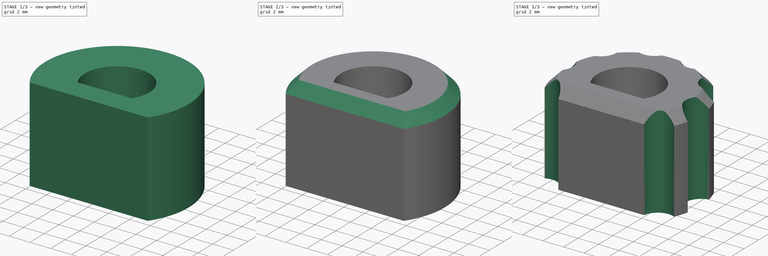
[diagram: build sequence overview — one tinted view per stage of 3, left to right]
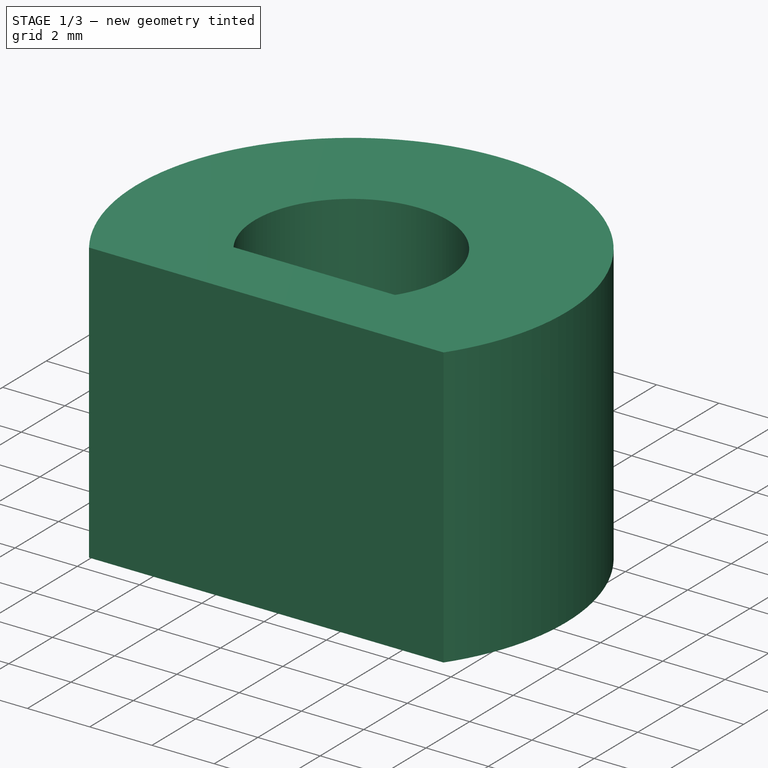
[diagram: stage 1 of 3 — iso view after this stage's code; geometry added in this stage tinted green]
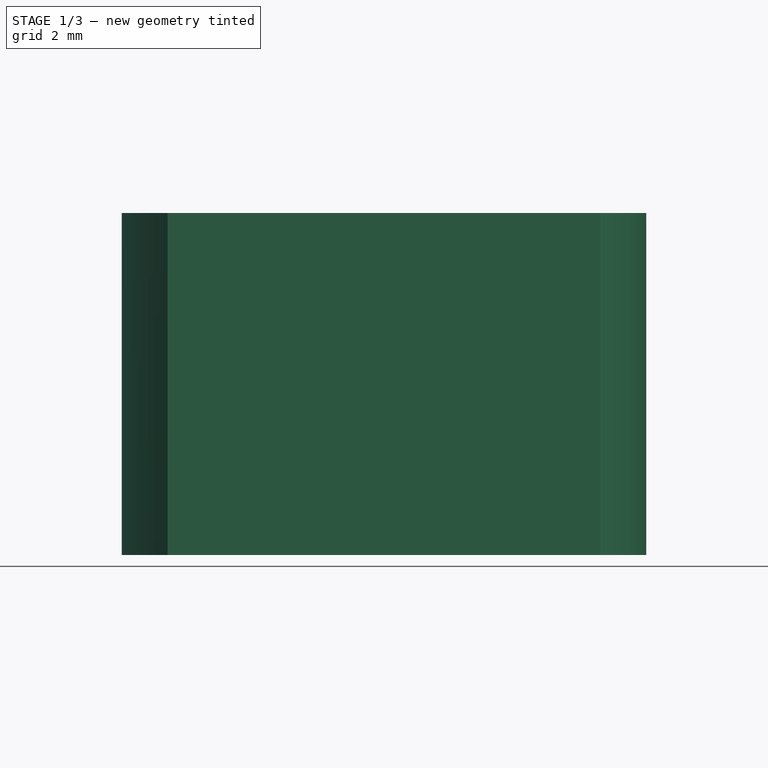
[diagram: stage 1 of 3 — front view after this stage's code; geometry added in this stage tinted green]
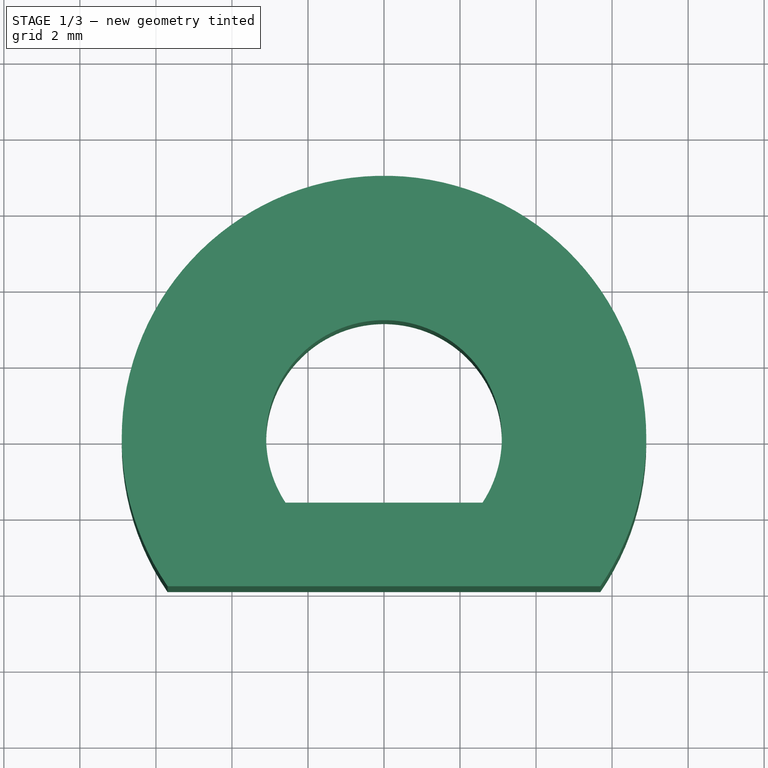
[diagram: stage 1 of 3 — top view after this stage's code; geometry added in this stage tinted green]
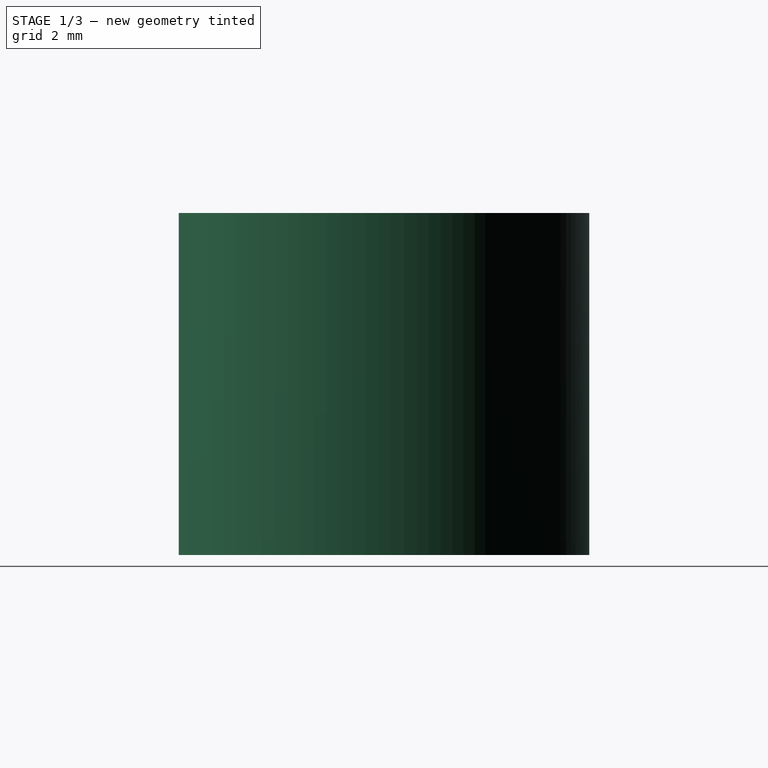
[diagram: stage 1 of 3 — right view after this stage's code; geometry added in this stage tinted green]
FCSTD DOCUMENT  (FreeCAD 0.19R)
Label: KNOB-TEK2
License: All rights reserved
LicenseURL: http://en.wikipedia.org/wiki/All_rights_reserved
objects: Part::Feature×3, Sketcher::SketchObject×3, PartDesign::Pocket×2, PartDesign::Pad×1, PartDesign::Chamfer×1, PartDesign::PolarPattern×1, PartDesign::Body×1
note: 16 computed .brp shape members not serialized (recipe doc carries the construction recipe); baked Part::Feature solids carry a one-line shape summary decoded from their .brp

FEATURE [Part::Feature] Solid  label="alu_potmeter_002_04"
  Placement = pos=(0,0,12) rot=(0,0,1;0rad)
  shape: bbox 38.3 x 38.3 x 17.53 mm, 68 faces (baked)
FEATURE [Part::Feature] Solid001  label="alu_potmeter_007_redesign"
  shape: bbox 37.83 x 37.83 x 21.37 mm, 90 faces (baked)
FEATURE [Part::Feature] Solid002  label="alu_potmeter_007_05"
  shape: bbox 37.88 x 37.93 x 18.33 mm, 68 faces (baked)
FEATURE [Sketcher::SketchObject] Sketch009
  FullyConstrained = true
  MapMode = 5
  Support = -> [XY_Plane003]
  sketch-geometry (4):
    g0: ArcOfCircle CenterX=0 CenterY=0 CenterZ=0 NormalX=0 NormalY=0 NormalZ=1 AngleXU=0 Radius=3.1 StartAngle=5.70275 EndAngle=10.0052
    g1: LineSegment StartX=2.5923 StartY=-1.7 StartZ=0 EndX=-2.5923 EndY=-1.7 EndZ=0
    g2: ArcOfCircle CenterX=0 CenterY=0 CenterZ=0 NormalX=0 NormalY=0 NormalZ=1 AngleXU=0 Radius=6.9 StartAngle=5.68249 EndAngle=10.0255
    g3: LineSegment StartX=-5.6921 StartY=-3.9 StartZ=0 EndX=5.6921 EndY=-3.9 EndZ=0
  constraints (13):
    c: Coincident(g1,g0)
    c: Coincident(g0,g1)
    c: Horizontal(g1)
    c: Diameter(g0) = 6.2
    c: DistanceY(g0,g0) = 1.7
    c: Coincident(g3,g2)
    c: Coincident(g3,g2)
    c: Horizontal(g3)
    c: Radius(g2) = 6.9
    c: Coincident(g0,g-1)
    c: PointOnObject(g2,g-2)
    c: DistanceY(g2,g2) = 3.9
    c: DistanceY(g0,g2) = 0
FEATURE [PartDesign::Pad] Pad
  Direction = (0,0,1)
  Length = 9
  Length2 = 10
  Profile = -> Sketch009
  Type = 0
FEATURE [Sketcher::SketchObject] Sketch010
  FullyConstrained = true
  MapMode = 5
  Support = -> [XY_Plane003]
  sketch-geometry (1):
    g0: Circle CenterX=0 CenterY=0 CenterZ=0 NormalX=0 NormalY=0 NormalZ=1 AngleXU=0 Radius=3.375
  constraints (2):
    c: Coincident(g0,g-1)
    c: Diameter(g0) = 6.75
FEATURE [PartDesign::Pocket] Pocket003
  BaseFeature = -> Pad
  Length = 3
  Length2 = 5
  Profile = -> Sketch010
  Reversed = true
  Type = 0
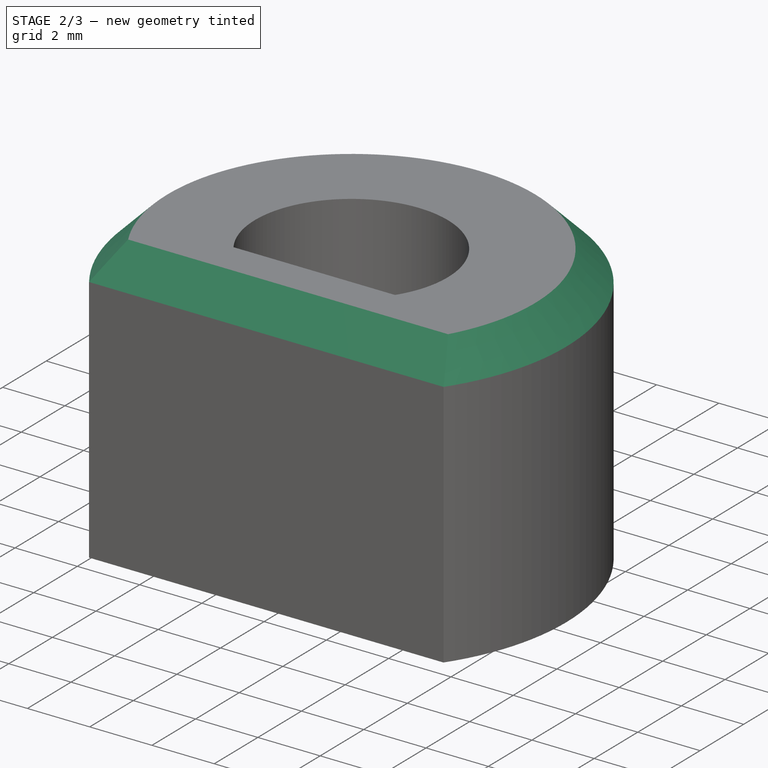
[diagram: stage 2 of 3 — iso view after this stage's code; geometry added in this stage tinted green]
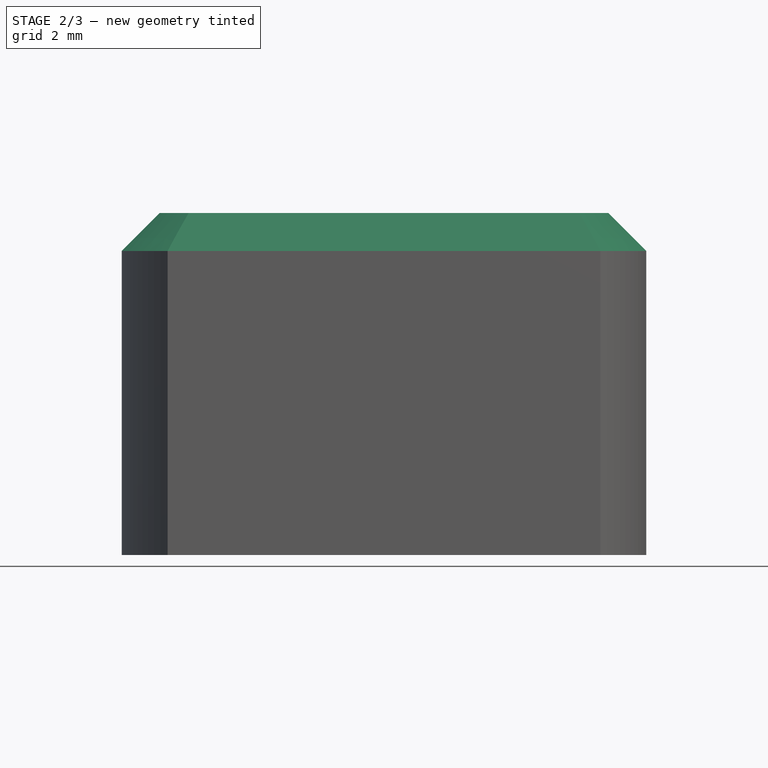
[diagram: stage 2 of 3 — front view after this stage's code; geometry added in this stage tinted green]
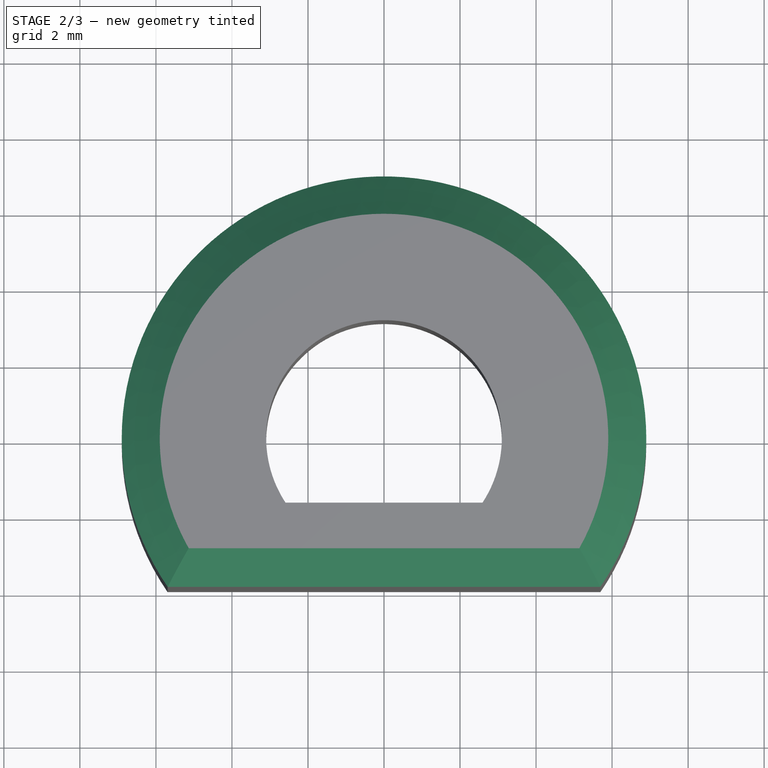
[diagram: stage 2 of 3 — top view after this stage's code; geometry added in this stage tinted green]
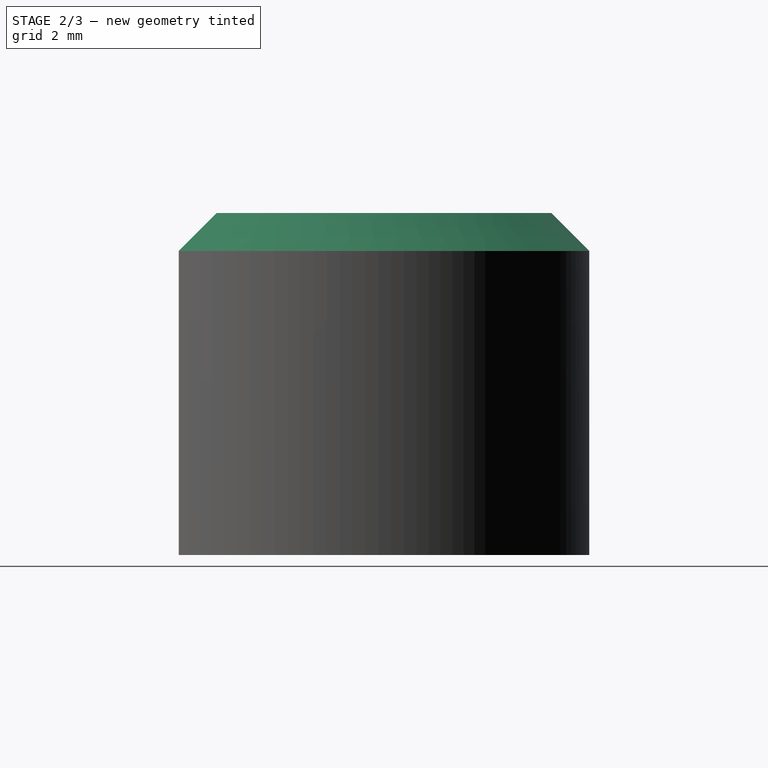
[diagram: stage 2 of 3 — right view after this stage's code; geometry added in this stage tinted green]
FEATURE [PartDesign::Chamfer] Chamfer
  Angle = 45
  Base = -> Pocket003 [Edge4,Edge6]
  BaseFeature = -> Pocket003
  ChamferType = 0
  FlipDirection = false
  Size = 1
  Size2 = 1
  SupportTransform = false
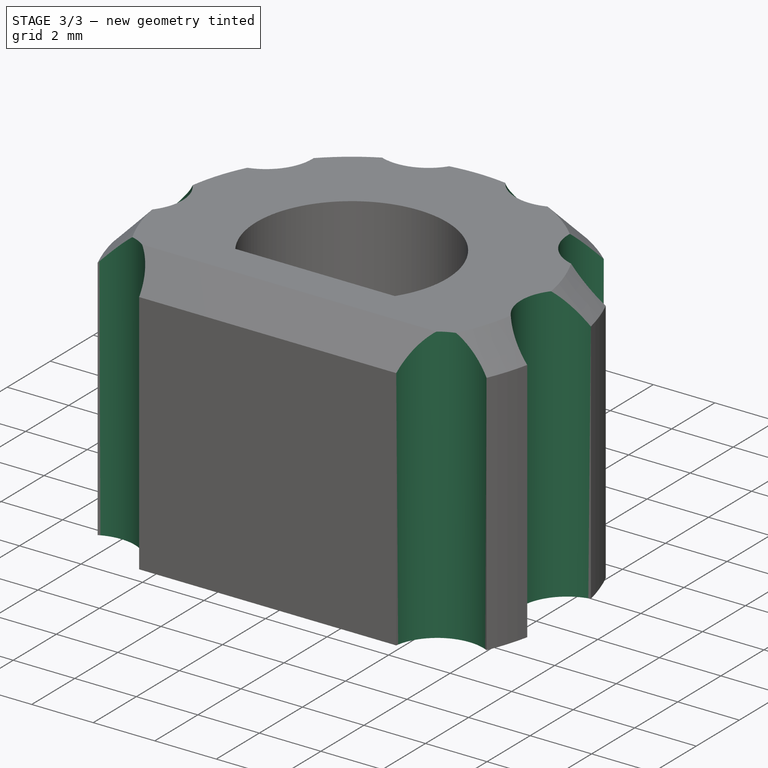
[diagram: stage 3 of 3 — iso view after this stage's code; geometry added in this stage tinted green]
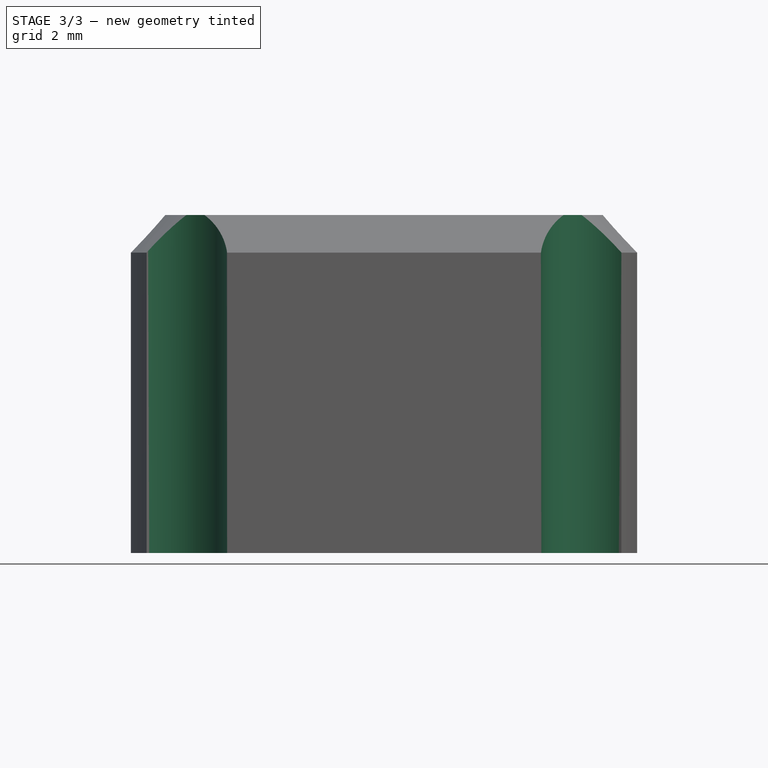
[diagram: stage 3 of 3 — front view after this stage's code; geometry added in this stage tinted green]
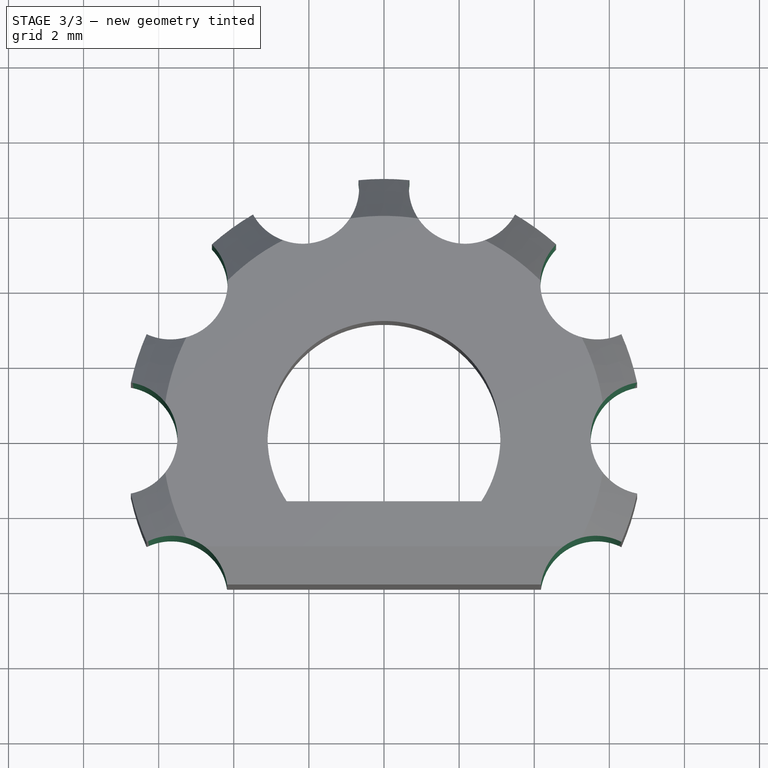
[diagram: stage 3 of 3 — top view after this stage's code; geometry added in this stage tinted green]
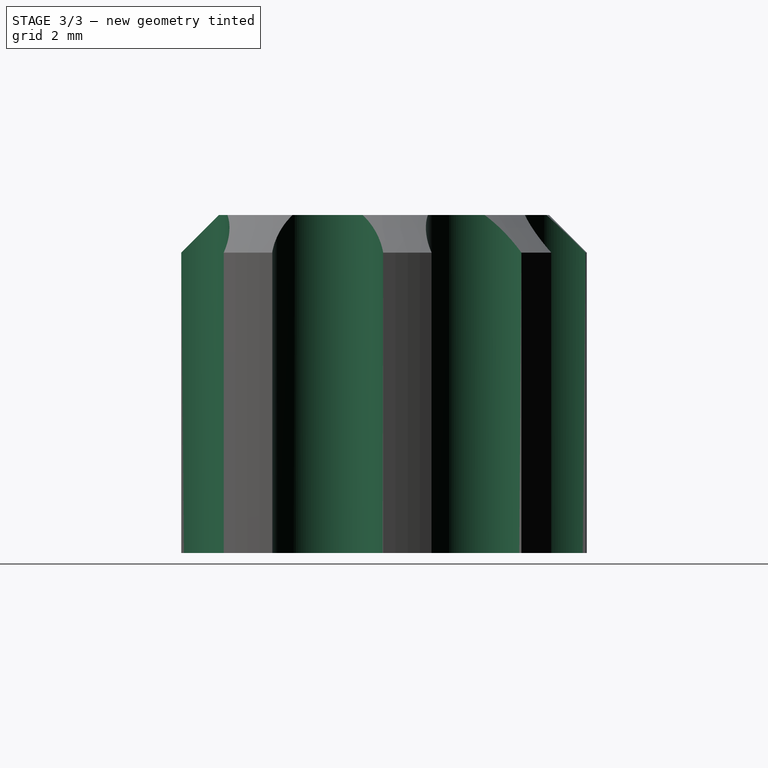
[diagram: stage 3 of 3 — right view after this stage's code; geometry added in this stage tinted green]
FEATURE [Sketcher::SketchObject] Sketch
  FullyConstrained = true
  MapMode = 5
  Support = -> [XY_Plane003]
  sketch-geometry (1):
    g0: Circle CenterX=-7 CenterY=0 CenterZ=0 NormalX=0 NormalY=0 NormalZ=1 AngleXU=0 Radius=1.5
  constraints (3):
    c: PointOnObject(g0,g-1)
    c: DistanceX(g0,g-1) = 7
    c: Diameter(g0) = 3
FEATURE [PartDesign::Pocket] Pocket
  BaseFeature = -> Chamfer
  Length = 5
  Length2 = 100
  Midplane = true
  Profile = -> Sketch
  Type = 1
FEATURE [PartDesign::PolarPattern] PolarPattern
  Angle = 360
  Axis = -> Sketch [N_Axis]
  BaseFeature = -> Pocket
  Occurrences = 10
  Originals = -> [Pocket]
FEATURE [PartDesign::Body] Body003  label="INSERT_TEK2"
  Group = -> [Sketch009,Pad,Sketch010,Pocket003,Chamfer,Sketch,Pocket,PolarPattern]
  Origin = -> Origin003
  Placement = pos=(0,0,16) rot=(0,0,1;0rad)
  Tip = -> PolarPattern
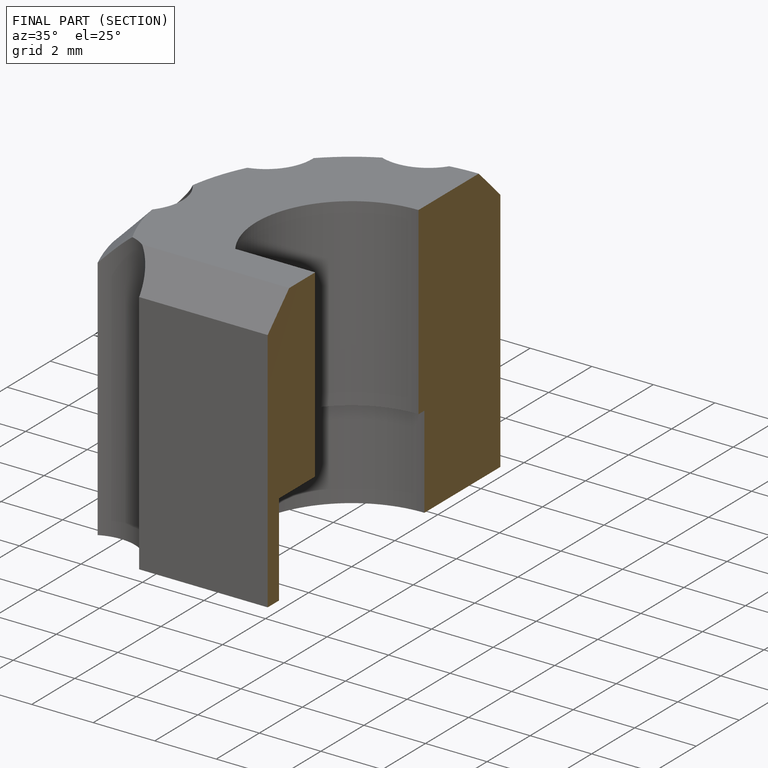
[diagram: finished part — half-section view (interior)]
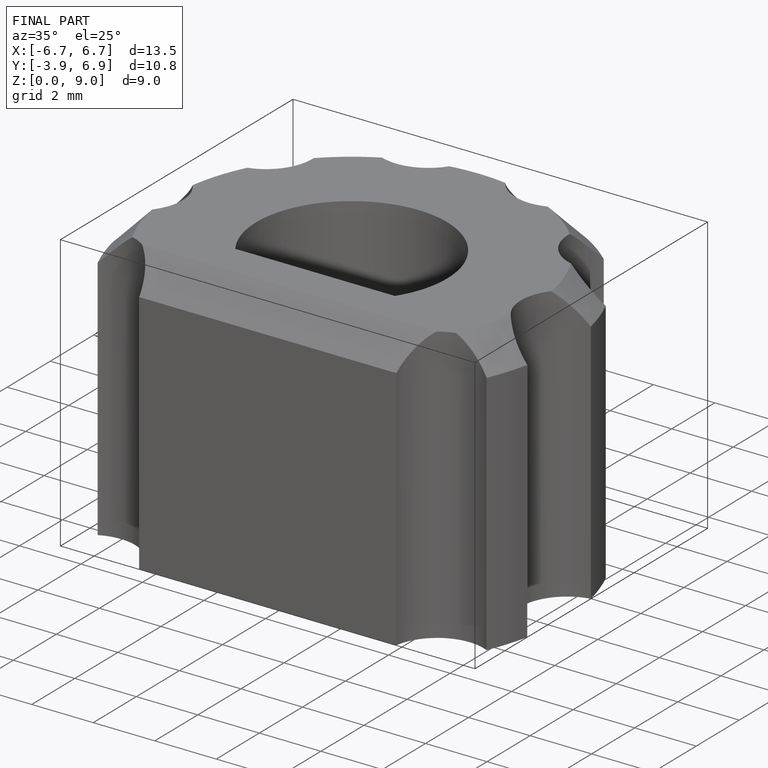
[diagram: finished part — iso view with bounding-box wireframe]
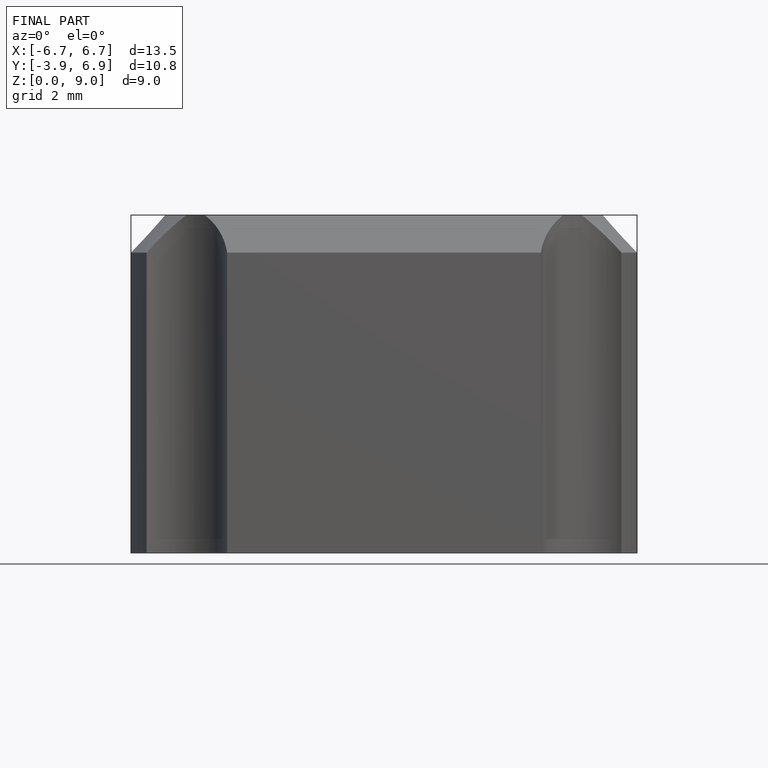
[diagram: finished part — front view with bounding-box wireframe]
